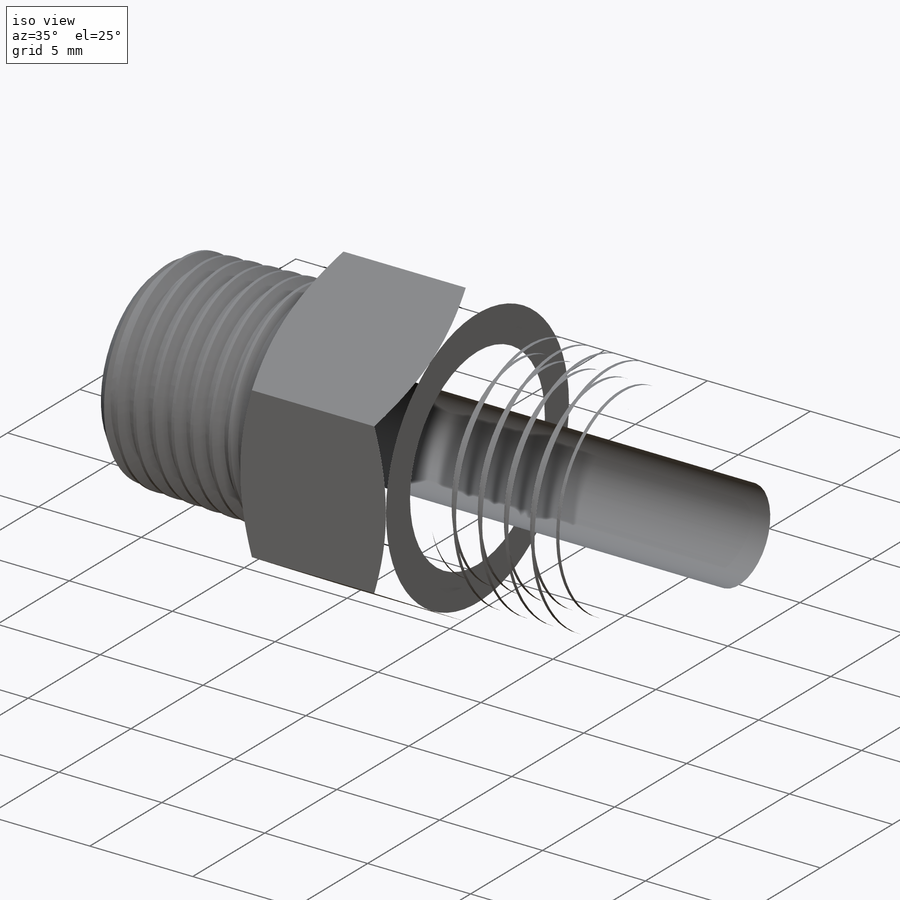
[diagram: iso view]
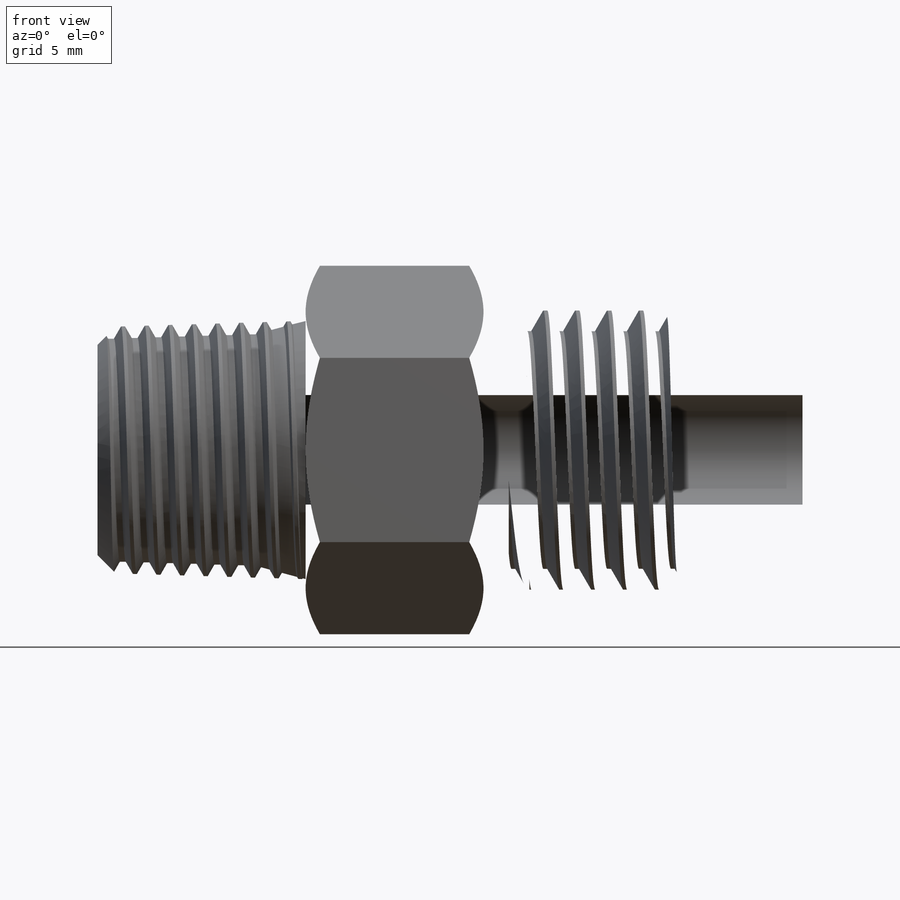
[diagram: front view]
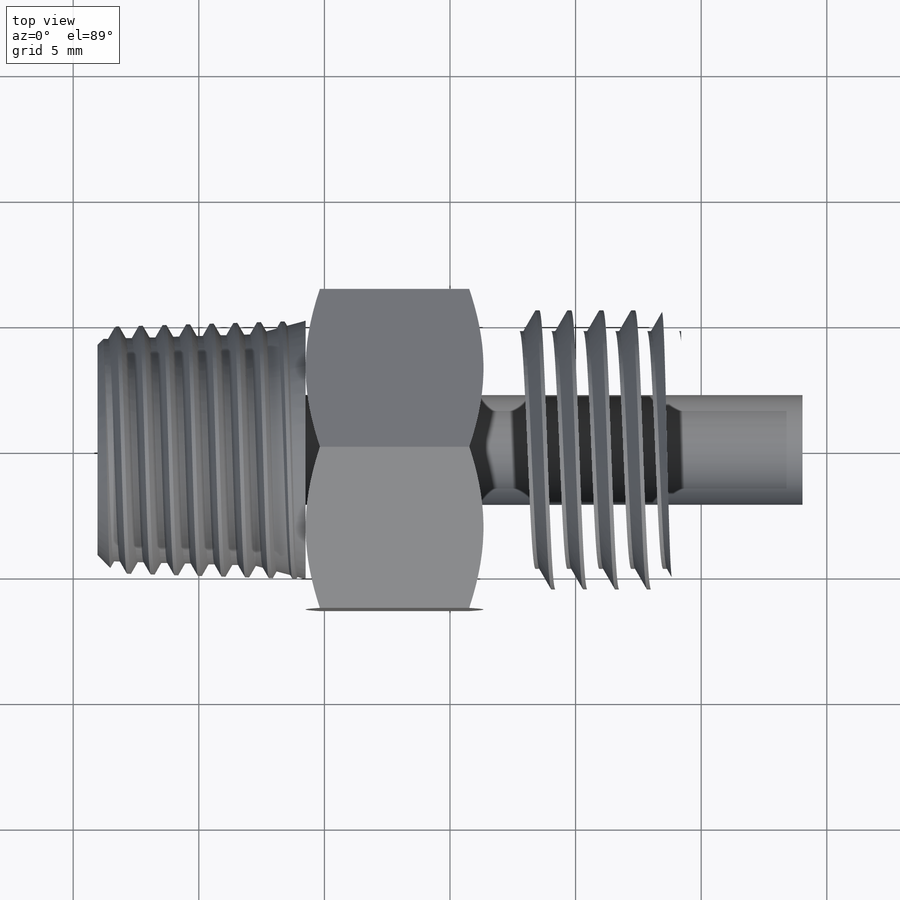
[diagram: top view]
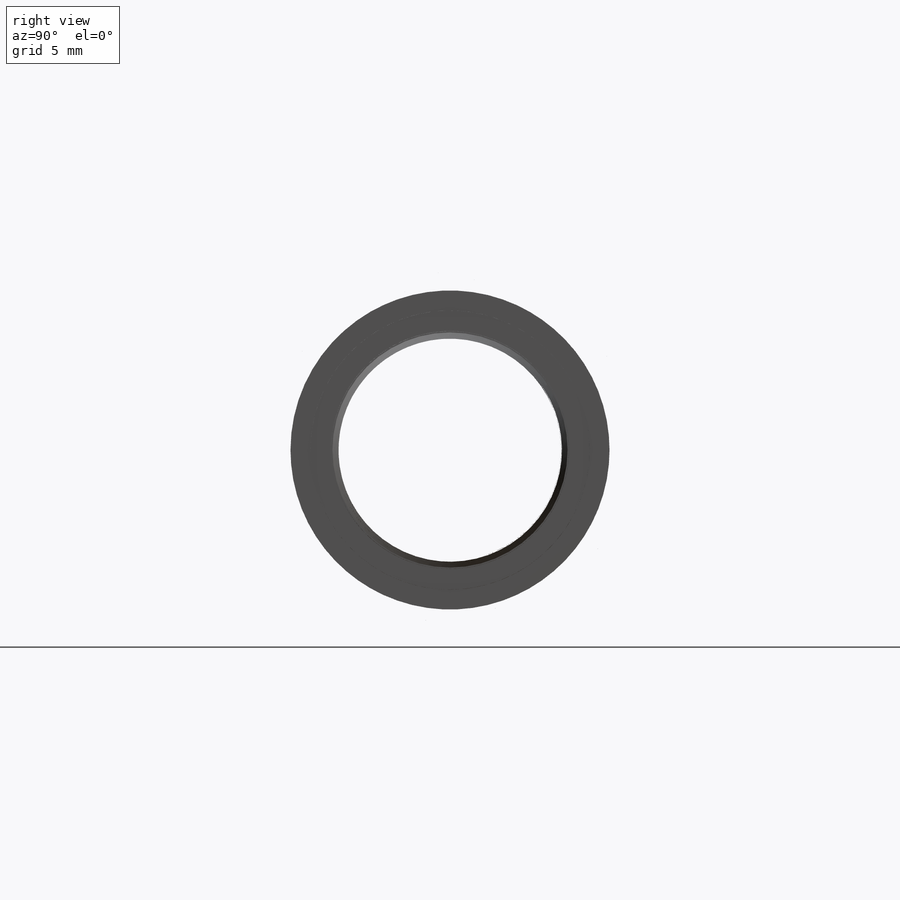
[diagram: right view]
SOLIDWORKS PART (.sldprt)
format: sldprt  version: not decoded by parser v0  size: 1,563,648 bytes
history: native  units: mm
features: sketch x13, extrude x3, cut_revolve x3, helix x2, sweep x2, plane x2, cut_extrude x2, material x1, revolve x1, chamfer x1, boolean_combine x1 (+13 scaffold rows collapsed)
feature tree (44):
  scaffold x13  (default folders/planes/origin — collapsed)
  material  "Material <not specified>"
  sketch  "Sketch6"  dims[c1.D1=~52.527706mm c2.D1=45.0deg c2.Flange OD=50.3936mm c2.Actual OD=53.4924mm c3.Flange OD=63.9064mm c3.D1=2.54mm c3.D2=~12.888047mm c4.D2=60.0deg c4.Straight Dia=11.1125mm c4.Length=28.067mm c4.L1=12.7mm c4.Thread Engagement=10.16mm c4.Pipe OD=11.1125mm c5.Pipe OD=10.287mm c5.Pipe Thread Length=~8.28548mm]
  revolve  "Revolve3"  Angle=360deg
  sketch  "Sketch14"  dims[D1=0.0mm]
  helix  "Helix/Spiral1"  Pitch=13.97mm
  sketch  "Sketch15"  dims[c1.D1=~1.629371mm c2.D1=60.0deg c2.D2=~0.15875mm c2.D3=0.635mm]
  sweep  "Cut-Sweep1"
  plane  "Plane1"
  sketch  "Sketch12"  dims[Hex=12.7mm]
  extrude  "Extrude1"  [1 undecoded]
  sketch  "Sketch7"  dims[ID2=9.906mm ID1=9.906mm ID=4.3688mm]
  sketch  "Sketch10"  dims[c1.D1=~3.486075mm c2.D1=37.0deg c2.D2=2.8067mm c3.D1=2.8067mm c4.D1=45.0deg c4.D2=0.0508mm c4.D3=~2.822222mm c4.D4=~2.846024mm c5.D4=37.0deg c5.D5=~1.411111mm c5.D6=~1.058333mm c6.D6=45.0deg c6.D1=~8.67537mm c6.D7=~5.66259mm c7.D7=45.0deg c7.D2=0.0254mm c7.D8=~1.763889mm c7.D1=~5.02412mm c8.D2=~6.401714mm c9.D2=37.0deg c9.D3=1.905mm c9.D4=~2.977518mm c9.D5=~2.822222mm c10.D5=45.0deg c10.D4=0.9525mm c10.D6=2.54mm c10.D7=0.0508mm]
  cut_revolve  "Cut-Revolve6"  Angle=360deg
  cut_revolve  "Cut-Revolve5"  Angle=360deg
  sketch  "Sketch13"  dims[c1.D1=1.5875mm c1.D2=1.5875mm c2.D2=30.0deg c2.D3=0.254mm]
  cut_revolve  "Cut-Revolve7"  Angle=360deg
  sketch  "Sketch17"
  cut_extrude  "Cut-Extrude1"  [1 undecoded]
  plane  "Plane2"
  sketch  "Sketch19"
  extrude  "Boss-Extrude1"  [1 undecoded]
  sketch  "Sketch20"
  sketch  "Sketch21"  dims[c1.Pitch=~1.921834mm c1.D2=~0.240229mm c1.D1=~1.411111mm c2.D2=~0.240229mm c2.D3=~1.480459mm c2.D1=~0.940741mm]
  helix  "Helix/Spiral2"  Pitch=9.226221mm
  chamfer  "Chamfer1"  Distance=0.705556mm Angle=45deg
  sketch  "Sketch22"  dims[D1=0.0mm]
  sweep  "Cut-Sweep2"
  extrude  "Boss-Extrude3"  [1 undecoded]
  boolean_combine  "Combine1"
  sketch  "Sketch23"  dims[D1=0.762mm]
  cut_extrude  "Cut-Extrude2"  [1 undecoded]
decode coverage: 17 of 28 modeling features carry decoded parameters
note: ~ marks probable driven/reference dimensions
note: 5 parameter values undecoded
summary: no parameter record found for 5 features
note: suppression state not decoded; provenance and decode notes live in map.json
